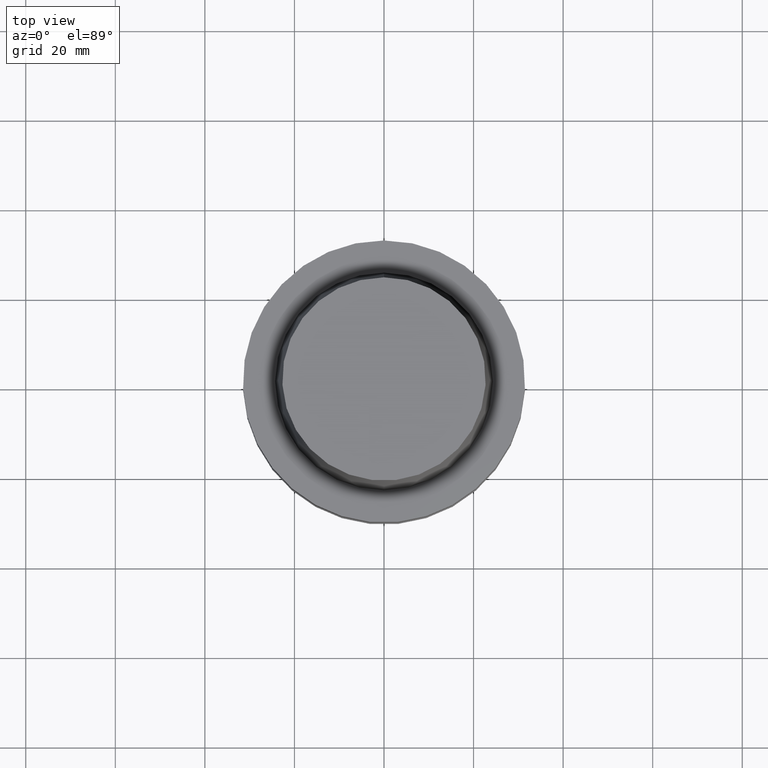
[diagram: clean part render]
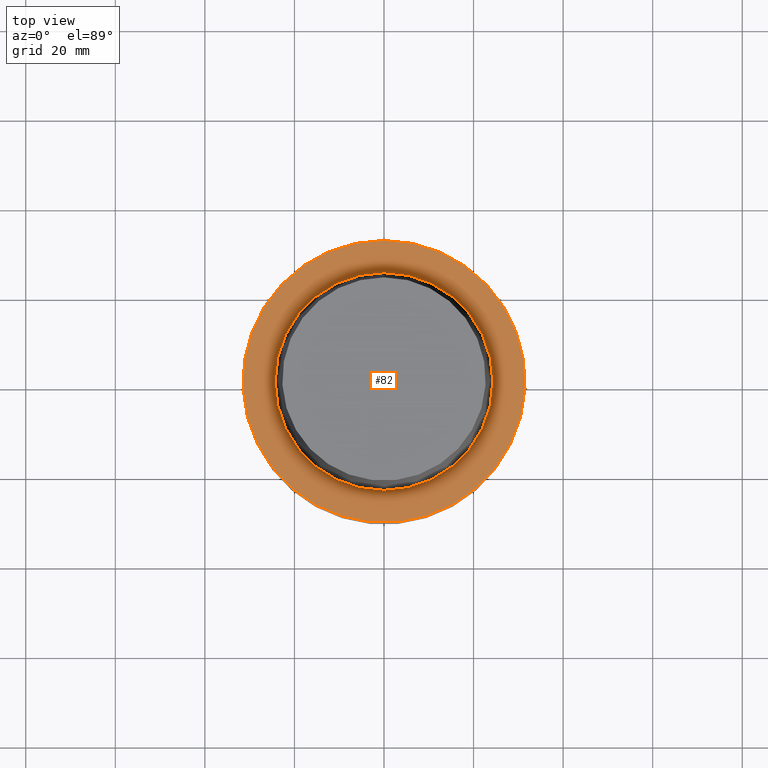
[diagram: same view with one face highlighted and labeled with its STEP entity id]
A machine part, top view. The second image highlights one B-rep face of the part: STEP entity #82.
In plain terms, the highlighted planar face has unit normal (-0, -0, 1).
Its self-contained STEP definition (entity closure, byte-faithful):
#82=ADVANCED_FACE('Unnamed[1]',(#219,#220),#221,.T.);
#88=EDGE_CURVE('Unnamed[1]',#229,#229,#230,.T.);
#150=EDGE_CURVE('Unnamed[1]',#321,#321,#322,.T.);
#219=FACE_BOUND('',#412,.T.);
#220=FACE_OUTER_BOUND('',#413,.T.);
#221=PLANE('',#414);
#229=VERTEX_POINT('',#425);
#230=CIRCLE('',#426,24.315);
#321=VERTEX_POINT('',#540);
#322=CIRCLE('',#541,31.5000000000001);
#412=EDGE_LOOP('',(#634));
#413=EDGE_LOOP('',(#635));
#414=AXIS2_PLACEMENT_3D('',#636,#637,#638);
#425=CARTESIAN_POINT('',(-2.99705514225764E-031,24.315,2.97772869212679E-015));
#426=AXIS2_PLACEMENT_3D('',#645,#646,#647);
#540=CARTESIAN_POINT('',(-3.88267476788467E-031,31.5000000000001,3.85763741731417E-015));
#541=AXIS2_PLACEMENT_3D('',#743,#744,#745);
#634=ORIENTED_EDGE('',*,*,#88,.F.);
#635=ORIENTED_EDGE('',*,*,#150,.T.);
#636=CARTESIAN_POINT('',(-3.43986495507116E-031,27.9075,3.41768305472048E-015));
#637=DIRECTION('',(-6.12323399573677E-017,-1.22464679914735E-016,1.0));
#638=DIRECTION('',(-1.23259516440783E-032,1.0,1.22464679914735E-016));
#645=CARTESIAN_POINT('',(0.0,0.0,0.0));
#646=DIRECTION('',(-6.12323399573677E-017,-1.22464679914735E-016,1.0));
#647=DIRECTION('',(-1.23259516440783E-032,1.0,1.22464679914735E-016));
#743=CARTESIAN_POINT('',(0.0,0.0,0.0));
#744=DIRECTION('',(-6.12323399573677E-017,-1.22464679914735E-016,1.0));
#745=DIRECTION('',(-1.23259516440783E-032,1.0,1.22464679914735E-016));